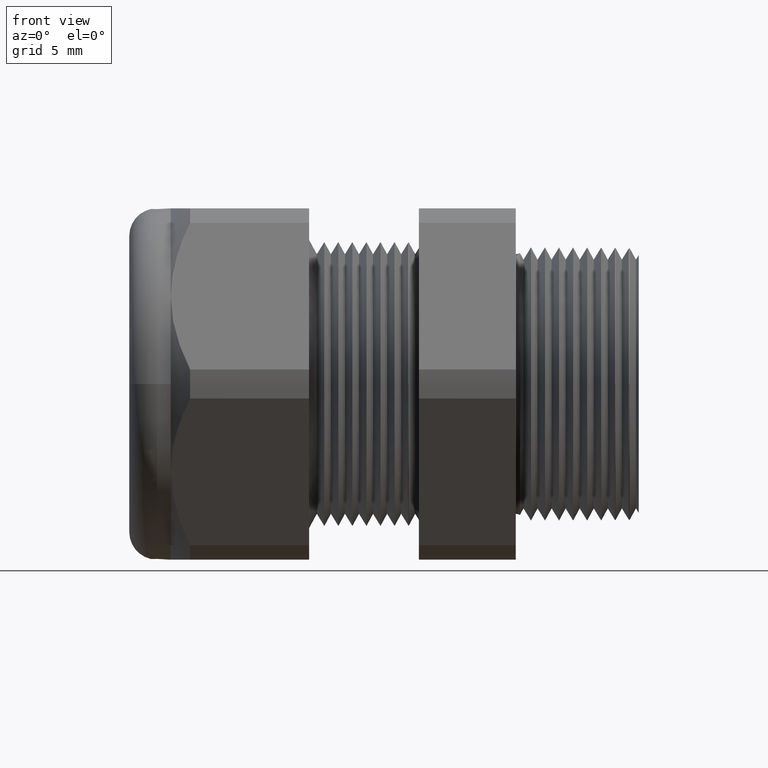
[diagram: clean part render]
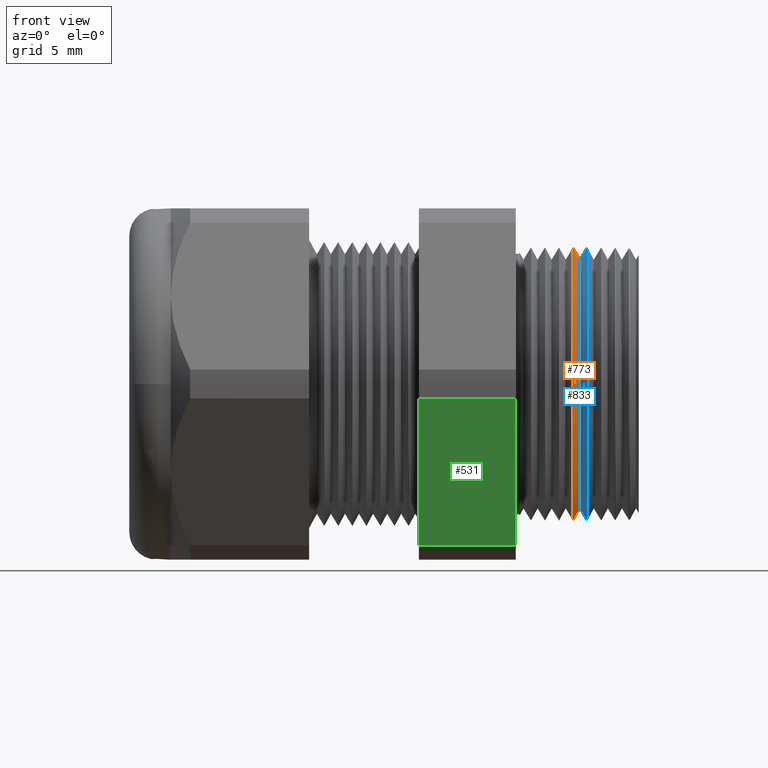
[diagram: same view with three faces highlighted in distinct colors, each labeled with its STEP entity id]
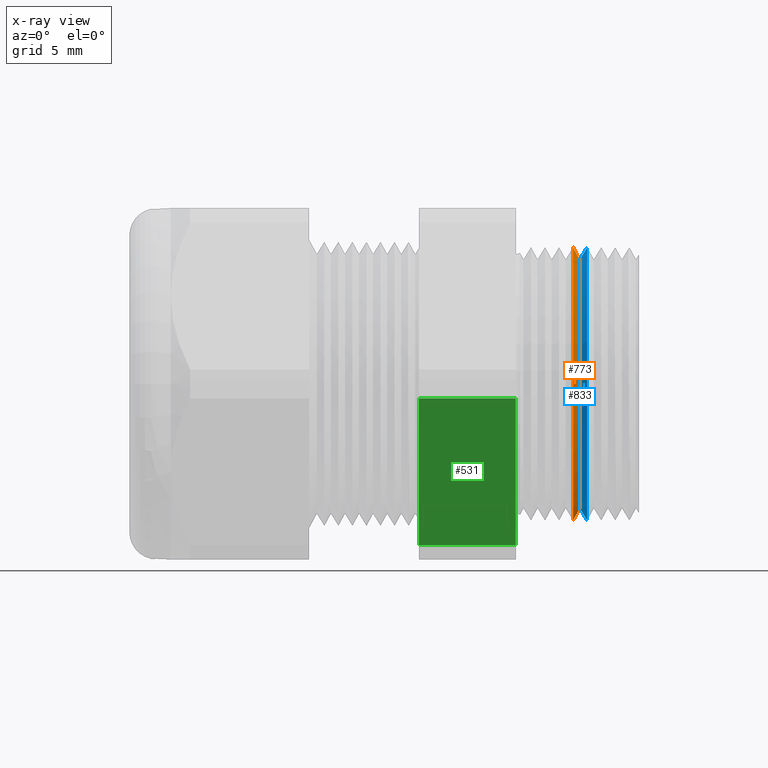
[diagram: x-ray of the same camera — body ghosted, the three highlighted faces saturated]
A machine part, front view with three faces highlighted in distinct colors.
The next image is the same camera in x-ray (body ghosted, the three faces saturated) — at least one of them is partly hidden behind the body in this view.
Their STEP definitions:

[orange] entity #773 — the highlighted conical surface has half-angle 61.5 deg.
#772 = EDGE_CURVE ( 'NONE', #1212, #1215, #2652, .T. ) ;
#773 = ADVANCED_FACE ( 'NONE', ( #2709 ), #2708, .T. ) ;
#774 = EDGE_LOOP ( 'NONE', ( #775, #776, #831, #832 ) ) ;
#775 = ORIENTED_EDGE ( 'NONE', *, *, #1211, .F. ) ;
#776 = ORIENTED_EDGE ( 'NONE', *, *, #777, .F. ) ;
#777 = EDGE_CURVE ( 'NONE', #1257, #1180, #2702, .T. ) ;
#831 = ORIENTED_EDGE ( 'NONE', *, *, #1217, .T. ) ;
#832 = ORIENTED_EDGE ( 'NONE', *, *, #772, .F. ) ;
#1180 = VERTEX_POINT ( 'NONE', #3322 ) ;
#1211 = EDGE_CURVE ( 'NONE', #1180, #1212, #3382, .T. ) ;
#1212 = VERTEX_POINT ( 'NONE', #3378 ) ;
#1215 = VERTEX_POINT ( 'NONE', #3436 ) ;
#1217 = EDGE_CURVE ( 'NONE', #1257, #1215, #3435, .T. ) ;
#1257 = VERTEX_POINT ( 'NONE', #3534 ) ;
#2650 = DIRECTION ( 'NONE',  ( -1.000000000000000000, 0.0000000000000000000, 0.0000000000000000000 ) ) ;
#2651 = AXIS2_PLACEMENT_3D ( 'NONE', #2657, #2650, #2710 ) ;
#2652 = CIRCLE ( 'NONE', #2651, 0.3886162724838472200 ) ;
#2657 = CARTESIAN_POINT ( 'NONE',  ( -0.1467523337684279400, -4.498836245066651800E-018, 0.0000000000000000000 ) ) ;
#2699 = DIRECTION ( 'NONE',  ( 0.0000000000000000000, 0.0000000000000000000, -1.000000000000000000 ) ) ;
#2700 = DIRECTION ( 'NONE',  ( 1.000000000000000000, 0.0000000000000000000, 0.0000000000000000000 ) ) ;
#2701 = AXIS2_PLACEMENT_3D ( 'NONE', #2707, #2700, #2699 ) ;
#2702 = CIRCLE ( 'NONE', #2701, 0.3540069058716038800 ) ;
#2703 = DIRECTION ( 'NONE',  ( 0.0000000000000000000, 0.0000000000000000000, 1.000000000000000000 ) ) ;
#2704 = DIRECTION ( 'NONE',  ( -1.000000000000000000, 0.0000000000000000000, 0.0000000000000000000 ) ) ;
#2705 = CARTESIAN_POINT ( 'NONE',  ( -0.1499999999999999700, -5.998448326755536200E-018, 0.0000000000000000000 ) ) ;
#2706 = AXIS2_PLACEMENT_3D ( 'NONE', #2705, #2704, #2703 ) ;
#2707 = CARTESIAN_POINT ( 'NONE',  ( -0.1279609809054343100, -5.998448326755536200E-018, 0.0000000000000000000 ) ) ;
#2708 = CONICAL_SURFACE ( 'NONE', #2706, 0.3945977295967106300, 1.073377489976514900 ) ;
#2709 = FACE_OUTER_BOUND ( 'NONE', #774, .T. ) ;
#2710 = DIRECTION ( 'NONE',  ( 0.0000000000000000000, 0.0000000000000000000, 1.000000000000000000 ) ) ;
#3322 = CARTESIAN_POINT ( 'NONE',  ( -0.1279609809054343100, 3.947410659052632100E-017, -0.3540069058716038800 ) ) ;
#3378 = CARTESIAN_POINT ( 'NONE',  ( -0.1467523337684279400, -4.498836245066651800E-018, -0.3886162724838472200 ) ) ;
#3379 = DIRECTION ( 'NONE',  ( -0.4771587602596063500, 1.076240564057396000E-016, -0.8788171126619663800 ) ) ;
#3380 = VECTOR ( 'NONE', #3379, 39.37007874015748900 ) ;
#3381 = CARTESIAN_POINT ( 'NONE',  ( -0.1499999999999999700, 4.232583632338691000E-017, -0.3945977295967106300 ) ) ;
#3382 = LINE ( 'NONE', #3381, #3380 ) ;
#3432 = DIRECTION ( 'NONE',  ( -0.4771587602596063500, 0.0000000000000000000, 0.8788171126619663800 ) ) ;
#3433 = VECTOR ( 'NONE', #3432, 39.37007874015748900 ) ;
#3434 = CARTESIAN_POINT ( 'NONE',  ( -0.1499999999999999700, -5.998448326755536200E-018, 0.3945977295967106300 ) ) ;
#3435 = LINE ( 'NONE', #3434, #3433 ) ;
#3436 = CARTESIAN_POINT ( 'NONE',  ( -0.1467523337684279400, 4.309293117432526100E-017, 0.3886162724838472200 ) ) ;
#3534 = CARTESIAN_POINT ( 'NONE',  ( -0.1279609809054343100, -5.998448326755536200E-018, 0.3540069058716038800 ) ) ;

[blue] entity #833 — the highlighted conical surface has half-angle 58.5 deg.
#758 = EDGE_LOOP ( 'NONE', ( #759, #760, #761, #762 ) ) ;
#759 = ORIENTED_EDGE ( 'NONE', *, *, #1259, .F. ) ;
#760 = ORIENTED_EDGE ( 'NONE', *, *, #777, .T. ) ;
#761 = ORIENTED_EDGE ( 'NONE', *, *, #1262, .T. ) ;
#762 = ORIENTED_EDGE ( 'NONE', *, *, #763, .T. ) ;
#763 = EDGE_CURVE ( 'NONE', #1174, #1183, #2674, .T. ) ;
#777 = EDGE_CURVE ( 'NONE', #1257, #1180, #2702, .T. ) ;
#833 = ADVANCED_FACE ( 'NONE', ( #2760 ), #2755, .T. ) ;
#1174 = VERTEX_POINT ( 'NONE', #3329 ) ;
#1180 = VERTEX_POINT ( 'NONE', #3322 ) ;
#1183 = VERTEX_POINT ( 'NONE', #3373 ) ;
#1257 = VERTEX_POINT ( 'NONE', #3534 ) ;
#1259 = EDGE_CURVE ( 'NONE', #1257, #1183, #3533, .T. ) ;
#1262 = EDGE_CURVE ( 'NONE', #1180, #1174, #3529, .T. ) ;
#2666 = DIRECTION ( 'NONE',  ( 0.0000000000000000000, 0.0000000000000000000, 1.000000000000000000 ) ) ;
#2667 = DIRECTION ( 'NONE',  ( -1.000000000000000000, 0.0000000000000000000, 0.0000000000000000000 ) ) ;
#2668 = CARTESIAN_POINT ( 'NONE',  ( -0.1067523337684279500, -5.998448326755536200E-018, 0.0000000000000000000 ) ) ;
#2669 = AXIS2_PLACEMENT_3D ( 'NONE', #2668, #2667, #2666 ) ;
#2674 = CIRCLE ( 'NONE', #2669, 0.3886162724838472200 ) ;
#2699 = DIRECTION ( 'NONE',  ( 0.0000000000000000000, 0.0000000000000000000, -1.000000000000000000 ) ) ;
#2700 = DIRECTION ( 'NONE',  ( 1.000000000000000000, 0.0000000000000000000, 0.0000000000000000000 ) ) ;
#2701 = AXIS2_PLACEMENT_3D ( 'NONE', #2707, #2700, #2699 ) ;
#2702 = CIRCLE ( 'NONE', #2701, 0.3540069058716038800 ) ;
#2707 = CARTESIAN_POINT ( 'NONE',  ( -0.1279609809054343100, -5.998448326755536200E-018, 0.0000000000000000000 ) ) ;
#2750 = DIRECTION ( 'NONE',  ( 0.0000000000000000000, 0.0000000000000000000, -1.000000000000000000 ) ) ;
#2751 = DIRECTION ( 'NONE',  ( 1.000000000000000000, 0.0000000000000000000, 0.0000000000000000000 ) ) ;
#2752 = CARTESIAN_POINT ( 'NONE',  ( -0.1279609809054343100, -5.998448326755536200E-018, 0.0000000000000000000 ) ) ;
#2753 = AXIS2_PLACEMENT_3D ( 'NONE', #2752, #2751, #2750 ) ;
#2755 = CONICAL_SURFACE ( 'NONE', #2753, 0.3540069058716038800, 1.021017612416687200 ) ;
#2760 = FACE_OUTER_BOUND ( 'NONE', #758, .T. ) ;
#3322 = CARTESIAN_POINT ( 'NONE',  ( -0.1279609809054343100, 3.947410659052632100E-017, -0.3540069058716038800 ) ) ;
#3329 = CARTESIAN_POINT ( 'NONE',  ( -0.1067523337684279500, -5.998448326755536200E-018, -0.3886162724838472200 ) ) ;
#3373 = CARTESIAN_POINT ( 'NONE',  ( -0.1067523337684279500, 4.159331909263637400E-017, 0.3886162724838472200 ) ) ;
#3526 = DIRECTION ( 'NONE',  ( 0.5224985647159451400, 0.0000000000000000000, -0.8526401643540945100 ) ) ;
#3527 = VECTOR ( 'NONE', #3526, 39.37007874015748100 ) ;
#3528 = CARTESIAN_POINT ( 'NONE',  ( -0.1279609809054343100, -5.998448326755536200E-018, -0.3540069058716038800 ) ) ;
#3529 = LINE ( 'NONE', #3528, #3527 ) ;
#3530 = DIRECTION ( 'NONE',  ( 0.5224985647159451400, 1.044183048100714900E-016, 0.8526401643540945100 ) ) ;
#3531 = VECTOR ( 'NONE', #3530, 39.37007874015748100 ) ;
#3532 = CARTESIAN_POINT ( 'NONE',  ( -0.1279609809054343100, 3.735489408841626800E-017, 0.3540069058716038800 ) ) ;
#3533 = LINE ( 'NONE', #3532, #3531 ) ;
#3534 = CARTESIAN_POINT ( 'NONE',  ( -0.1279609809054343100, -5.998448326755536200E-018, 0.3540069058716038800 ) ) ;

[green] entity #531 — the highlighted planar face has unit normal (0, -0.866, -0.5).
#299 = EDGE_CURVE ( 'NONE', #322, #300, #1892, .T. ) ;
#300 = VERTEX_POINT ( 'NONE', #1949 ) ;
#322 = VERTEX_POINT ( 'NONE', #1972 ) ;
#526 = VERTEX_POINT ( 'NONE', #2352 ) ;
#528 = EDGE_CURVE ( 'NONE', #526, #529, #2351, .T. ) ;
#529 = VERTEX_POINT ( 'NONE', #2347 ) ;
#531 = ADVANCED_FACE ( 'NONE', ( #2346 ), #2345, .T. ) ;
#584 = EDGE_LOOP ( 'NONE', ( #585, #586, #587, #589 ) ) ;
#585 = ORIENTED_EDGE ( 'NONE', *, *, #605, .T. ) ;
#586 = ORIENTED_EDGE ( 'NONE', *, *, #528, .F. ) ;
#587 = ORIENTED_EDGE ( 'NONE', *, *, #588, .F. ) ;
#588 = EDGE_CURVE ( 'NONE', #300, #526, #2398, .T. ) ;
#589 = ORIENTED_EDGE ( 'NONE', *, *, #299, .F. ) ;
#605 = EDGE_CURVE ( 'NONE', #322, #529, #2439, .T. ) ;
#1890 = VECTOR ( 'NONE', #1950, 39.37007874015748100 ) ;
#1891 = CARTESIAN_POINT ( 'NONE',  ( -0.3100000000000000500, -0.1830127018922192200, -0.6830127018922194100 ) ) ;
#1892 = LINE ( 'NONE', #1891, #1890 ) ;
#1949 = CARTESIAN_POINT ( 'NONE',  ( -0.3100000000000000500, -0.3125708071877600400, -0.4586114809879841500 ) ) ;
#1950 = DIRECTION ( 'NONE',  ( 1.874515102111105400E-017, 0.5000000000000001100, -0.8660254037844386000 ) ) ;
#1972 = CARTESIAN_POINT ( 'NONE',  ( -0.3100000000000000500, -0.5534545965966783900, -0.04138851901201601900 ) ) ;
#2341 = DIRECTION ( 'NONE',  ( 0.0000000000000000000, 0.5000000000000001100, -0.8660254037844386000 ) ) ;
#2342 = DIRECTION ( 'NONE',  ( 0.0000000000000000000, -0.8660254037844386000, -0.5000000000000001100 ) ) ;
#2343 = CARTESIAN_POINT ( 'NONE',  ( 0.04000000000000011900, -0.3125708071877601500, -0.4586114809879841000 ) ) ;
#2344 = AXIS2_PLACEMENT_3D ( 'NONE', #2343, #2342, #2341 ) ;
#2345 = PLANE ( 'NONE',  #2344 ) ;
#2346 = FACE_OUTER_BOUND ( 'NONE', #584, .T. ) ;
#2347 = CARTESIAN_POINT ( 'NONE',  ( -0.5855905511811022600, -0.5534545965966783900, -0.04138851901201601900 ) ) ;
#2348 = DIRECTION ( 'NONE',  ( -1.874515102111105400E-017, -0.5000000000000001100, 0.8660254037844386000 ) ) ;
#2349 = VECTOR ( 'NONE', #2348, 39.37007874015748100 ) ;
#2350 = CARTESIAN_POINT ( 'NONE',  ( -0.5855905511811023700, -0.1830127018922193500, -0.6830127018922194100 ) ) ;
#2351 = LINE ( 'NONE', #2350, #2349 ) ;
#2352 = CARTESIAN_POINT ( 'NONE',  ( -0.5855905511811022600, -0.3125708071877600400, -0.4586114809879841500 ) ) ;
#2391 = DIRECTION ( 'NONE',  ( -1.000000000000000000, 0.0000000000000000000, 0.0000000000000000000 ) ) ;
#2392 = VECTOR ( 'NONE', #2391, 39.37007874015748100 ) ;
#2393 = CARTESIAN_POINT ( 'NONE',  ( 0.04000000000000011900, -0.3125708071877600400, -0.4586114809879841500 ) ) ;
#2398 = LINE ( 'NONE', #2393, #2392 ) ;
#2431 = DIRECTION ( 'NONE',  ( -1.000000000000000000, 0.0000000000000000000, 0.0000000000000000000 ) ) ;
#2432 = VECTOR ( 'NONE', #2431, 39.37007874015748100 ) ;
#2433 = CARTESIAN_POINT ( 'NONE',  ( 0.04000000000000011900, -0.5534545965966783900, -0.04138851901201601900 ) ) ;
#2439 = LINE ( 'NONE', #2433, #2432 ) ;